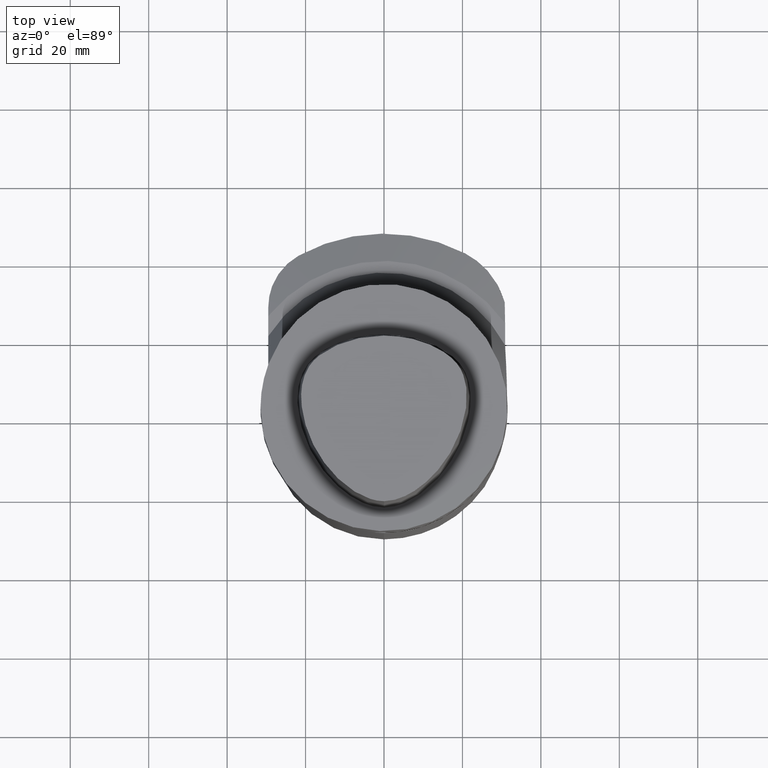
[diagram: clean part render]
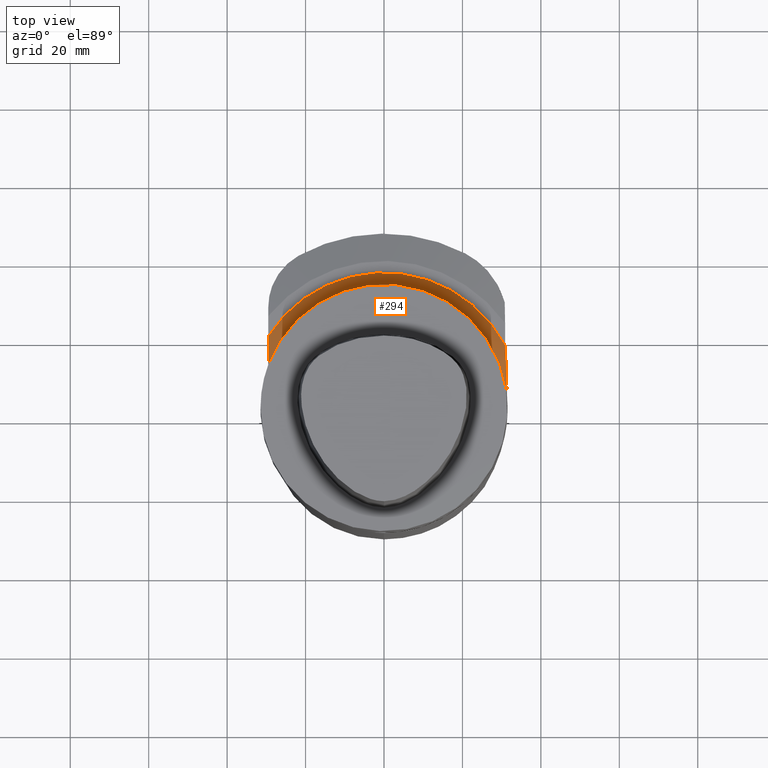
[diagram: same view with one face highlighted and labeled with its STEP entity id]
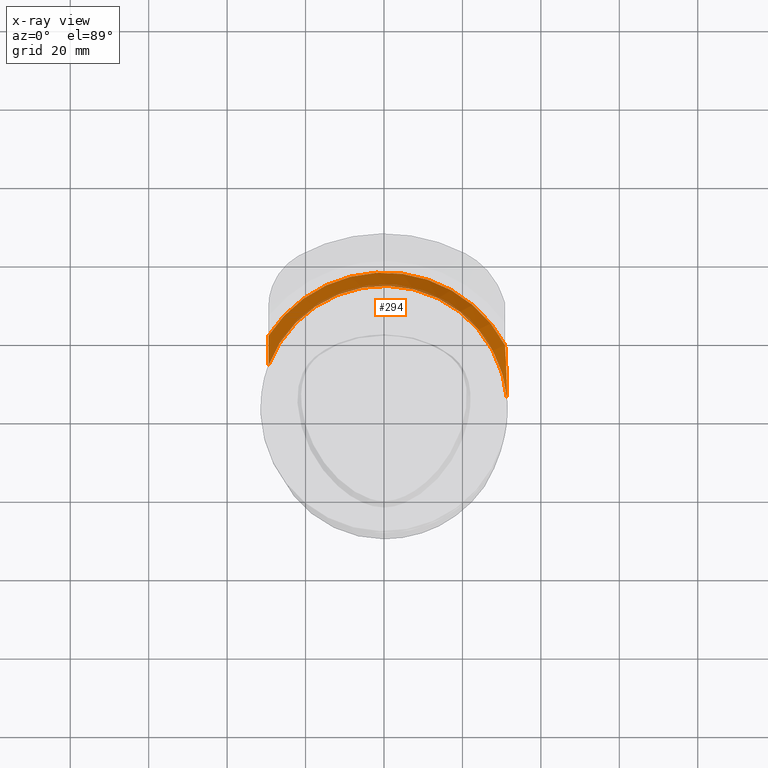
[diagram: x-ray of the same camera — body ghosted, the highlighted face saturated]
A machine part, top view. The second image highlights one B-rep face of the part: STEP entity #294.
The next image is the same camera in x-ray: the body ghosted, the highlighted face saturated — about 10% of this face is hidden behind the body in this view.
In plain terms, the highlighted conical surface has half-angle 25.056 deg.
Its self-contained STEP definition (entity closure, byte-faithful):
#175=EDGE_CURVE('240[2]',#420,#348,#421,.T.);
#196=EDGE_CURVE('240[2]',#348,#444,#451,.T.);
#211=EDGE_CURVE('240[2]',#469,#420,#470,.T.);
#294=ADVANCED_FACE('240[2]',(#570),#571,.T.);
#300=EDGE_CURVE('240[2]',#469,#444,#577,.T.);
#348=VERTEX_POINT('',#641);
#420=VERTEX_POINT('',#755);
#421=CIRCLE('',#756,35.0);
#444=VERTEX_POINT('',#808);
#451=(B_SPLINE_CURVE(2,(#830,#831,#832),.UNSPECIFIED.,.F.,.F.)B_SPLINE_CURVE_WITH_KNOTS((3,3),(1.45664682597853E-012,10.8454100689444),.UNSPECIFIED.)RATIONAL_B_SPLINE_CURVE((1.0,1.00697180313394,1.0))BOUNDED_CURVE()REPRESENTATION_ITEM('')GEOMETRIC_REPRESENTATION_ITEM()CURVE());
#469=VERTEX_POINT('',#871);
#470=(B_SPLINE_CURVE(2,(#873,#874,#875),.UNSPECIFIED.,.F.,.F.)B_SPLINE_CURVE_WITH_KNOTS((3,3),(0.000944343434187598,16.0806499439413),.UNSPECIFIED.)RATIONAL_B_SPLINE_CURVE((1.00000201456526,1.01715240322139,1.0))BOUNDED_CURVE()REPRESENTATION_ITEM('')GEOMETRIC_REPRESENTATION_ITEM()CURVE());
#570=FACE_OUTER_BOUND('',#1218,.T.);
#571=CONICAL_SURFACE('',#1219,33.2462500000001,0.437311247817369);
#577=CIRCLE('',#1229,31.4925000000001);
#641=CARTESIAN_POINT('',(-29.4999999999997,20.834808201838,-32.9999998151458));
#755=CARTESIAN_POINT('',(30.8706586925077,18.4924962298224,-32.9999998151458));
#756=AXIS2_PLACEMENT_3D('',#1324,#1325,#1326);
#808=CARTESIAN_POINT('',(-29.4999999999997,13.0239537485437,-25.4973260183546));
#830=CARTESIAN_POINT('',(-29.4999999999997,20.8348082018382,-32.999999815146));
#831=CARTESIAN_POINT('',(-29.4999999999997,16.7233684775788,-28.2673380189753));
#832=CARTESIAN_POINT('',(-29.4999999999997,13.0239537485435,-25.4973260183544));
#871=CARTESIAN_POINT('',(31.3952967521694,4.47242757087619,-25.4973260183546));
#873=CARTESIAN_POINT('',(31.3952967521694,4.4724275708762,-25.4973260183545));
#874=CARTESIAN_POINT('',(31.3269005056529,11.1653683205716,-26.4754379129983));
#875=CARTESIAN_POINT('',(30.8706586925077,18.4924962298227,-32.9999998151461));
#1218=EDGE_LOOP('',(#1519,#1520,#1521,#1522));
#1219=AXIS2_PLACEMENT_3D('',#1523,#1524,#1525);
#1229=AXIS2_PLACEMENT_3D('',#1530,#1531,#1532);
#1324=CARTESIAN_POINT('',(-1.77573784744458E-015,2.00000000000028,-32.9999998151459));
#1325=DIRECTION('',(6.12323399573673E-017,-2.95655383322482E-015,1.0));
#1326=DIRECTION('',(1.22464679914736E-016,1.0,2.95655383322482E-015));
#1519=ORIENTED_EDGE('',*,*,#211,.T.);
#1520=ORIENTED_EDGE('',*,*,#175,.T.);
#1521=ORIENTED_EDGE('',*,*,#196,.T.);
#1522=ORIENTED_EDGE('',*,*,#300,.F.);
#1523=CARTESIAN_POINT('',(-1.5460347111874E-015,2.00000000000026,-29.2486629167502));
#1524=DIRECTION('',(-6.12323399573673E-017,2.95655383322482E-015,-1.0));
#1525=DIRECTION('',(1.22464679914735E-016,1.0,2.95655383322482E-015));
#1530=CARTESIAN_POINT('',(-1.31633157493022E-015,2.00000000000026,-25.4973260183546));
#1531=DIRECTION('',(6.12323399573674E-017,-2.95655383322482E-015,1.0));
#1532=DIRECTION('',(1.22464679914735E-016,1.0,2.95655383322482E-015));